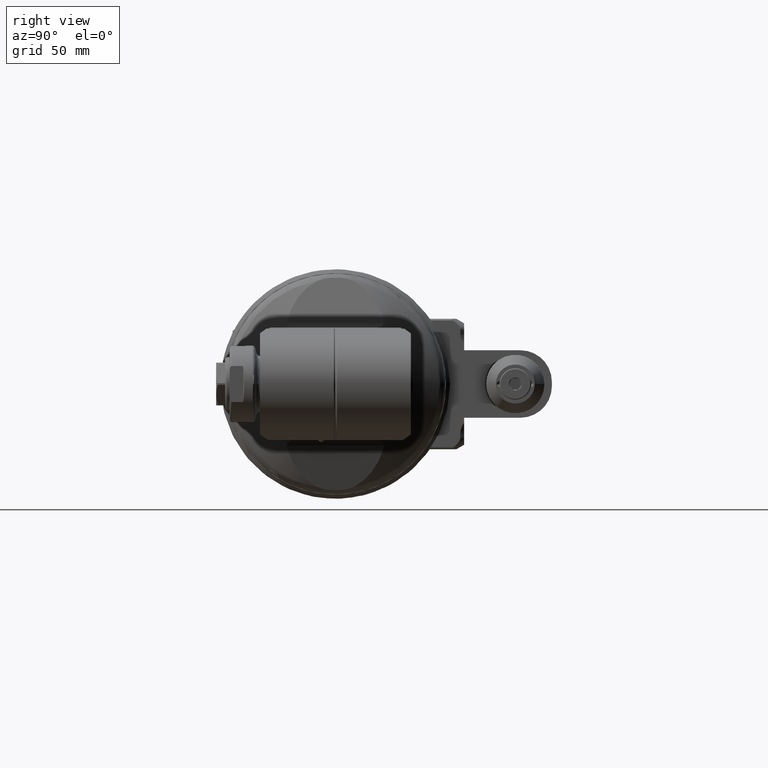
[diagram: clean part render]
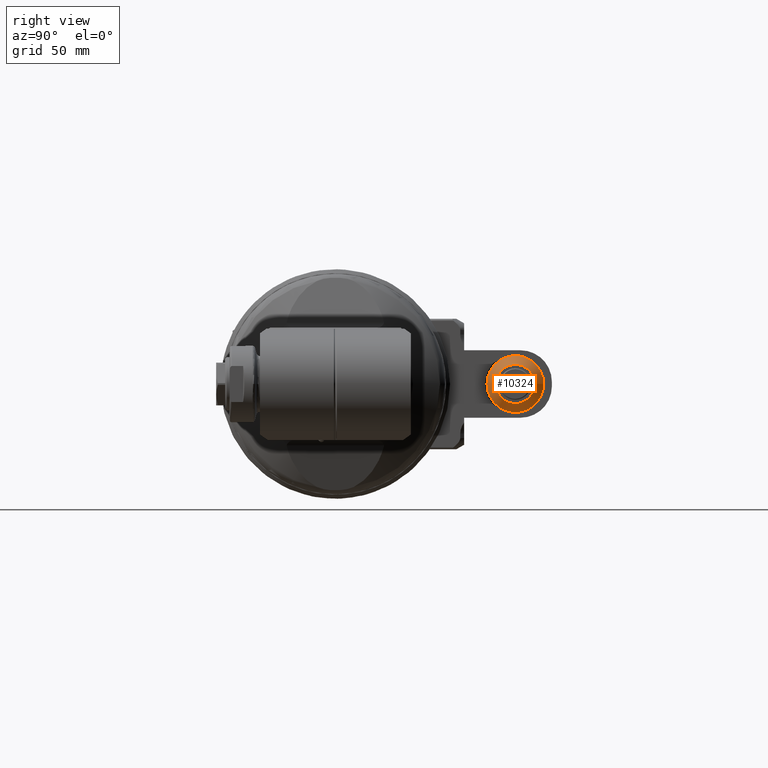
[diagram: same view with one face highlighted and labeled with its STEP entity id]
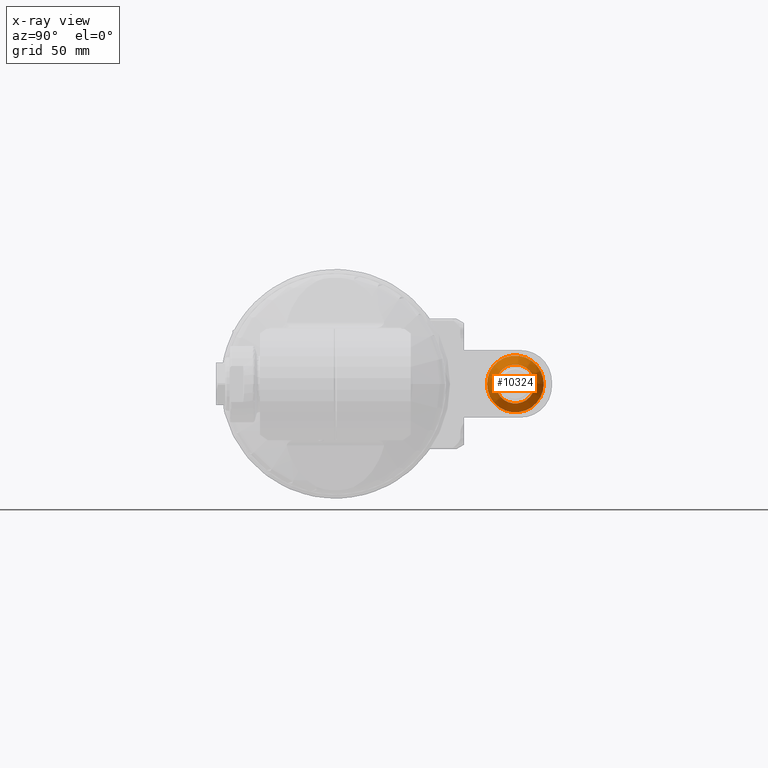
[diagram: x-ray of the same camera — body ghosted, the highlighted face saturated]
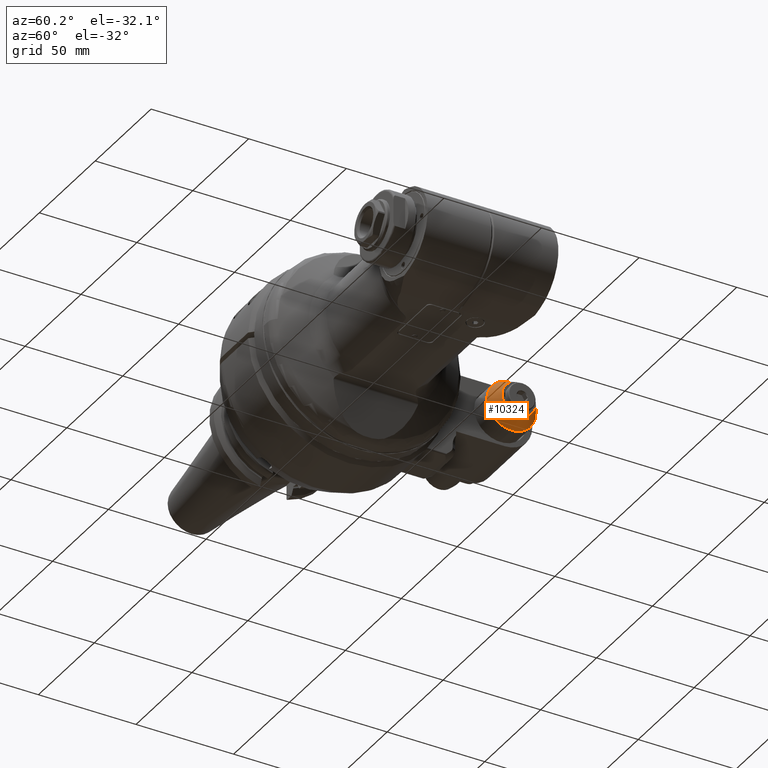
[diagram: same view with one face highlighted and labeled with its STEP entity id]
A machine part, right view. The second image highlights one B-rep face of the part: STEP entity #10324.
The next image is the same camera in x-ray: the body ghosted, the highlighted face saturated — about 0% of this face is hidden behind the body in this view.
A second angle (auxiliary view) of the same face is appended — the face is thin or edge-on in the first view.
In plain terms, the highlighted conical surface has half-angle 30 deg.
Its self-contained STEP definition (entity closure, byte-faithful):
#606=CONICAL_SURFACE('',#11409,10.63397459622,0.523598775598299);
#1132=LINE('',#17845,#1805);
#1805=VECTOR('',#13912,10.63397459622);
#2599=FACE_OUTER_BOUND('',#3313,.T.);
#3313=EDGE_LOOP('',(#8683,#8684,#8685,#8686));
#3909=CIRCLE('',#11408,12.59807621135);
#3910=CIRCLE('',#11410,8.669872981078);
#4766=VERTEX_POINT('',#17840);
#4767=VERTEX_POINT('',#17844);
#6123=EDGE_CURVE('',#4766,#4766,#3909,.T.);
#6124=EDGE_CURVE('',#4766,#4767,#1132,.T.);
#6125=EDGE_CURVE('',#4767,#4767,#3910,.T.);
#8683=ORIENTED_EDGE('',*,*,#6123,.F.);
#8684=ORIENTED_EDGE('',*,*,#6124,.T.);
#8685=ORIENTED_EDGE('',*,*,#6125,.F.);
#8686=ORIENTED_EDGE('',*,*,#6124,.F.);
#10324=ADVANCED_FACE('',(#2599),#606,.T.);
#11408=AXIS2_PLACEMENT_3D('',#17842,#13908,#13909);
#11409=AXIS2_PLACEMENT_3D('',#17843,#13910,#13911);
#11410=AXIS2_PLACEMENT_3D('',#17846,#13913,#13914);
#13908=DIRECTION('center_axis',(-1.,0.,0.));
#13909=DIRECTION('ref_axis',(0.,1.,0.));
#13910=DIRECTION('center_axis',(-1.,0.,0.));
#13911=DIRECTION('ref_axis',(0.,-1.,0.));
#13912=DIRECTION('',(0.866025403784439,-0.5,6.12323399573676E-17));
#13913=DIRECTION('center_axis',(1.,0.,0.));
#13914=DIRECTION('ref_axis',(0.,-1.,0.));
#17840=CARTESIAN_POINT('',(-7.303847577293,92.59807621135,0.));
#17842=CARTESIAN_POINT('Origin',(-7.303847577293,80.,0.));
#17843=CARTESIAN_POINT('Origin',(-3.901923788647,80.,0.));
#17844=CARTESIAN_POINT('',(-0.5,88.66987298108,0.));
#17845=CARTESIAN_POINT('',(-3.901923788647,90.63397459622,-1.30228629514751E-15));
#17846=CARTESIAN_POINT('Origin',(-0.5,80.,0.));